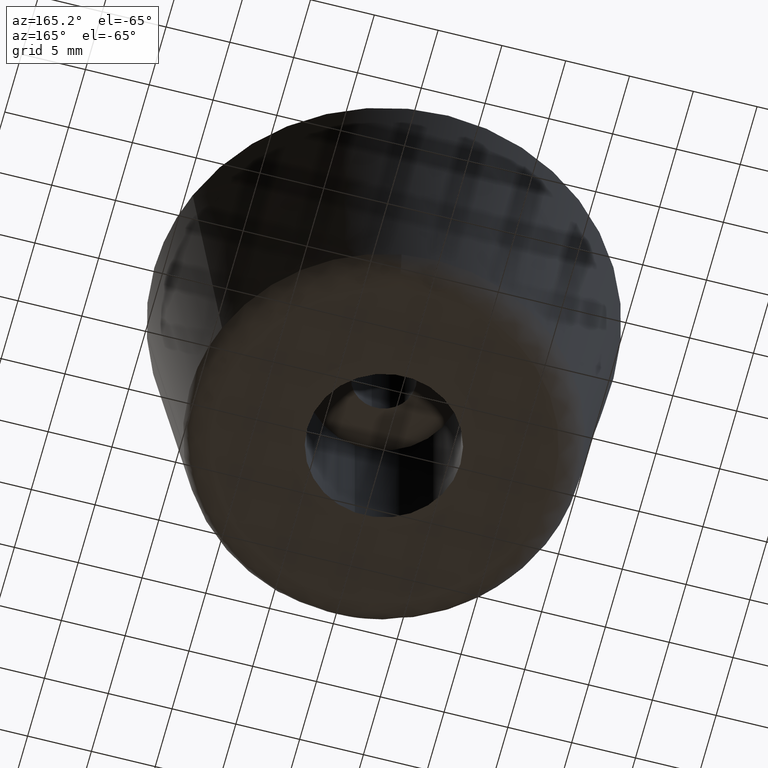
[diagram: clean part render]
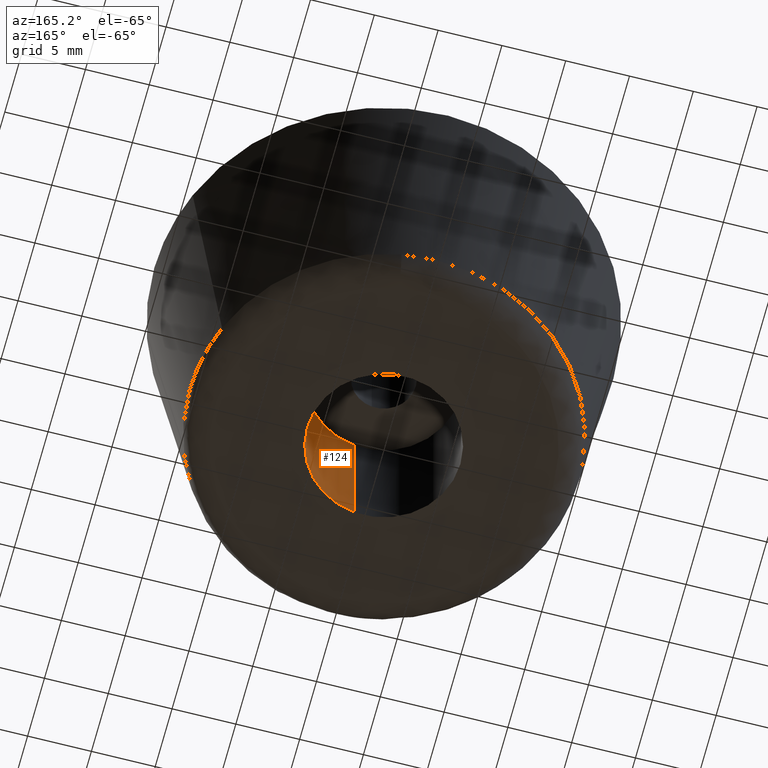
[diagram: same view with one face highlighted and labeled with its STEP entity id]
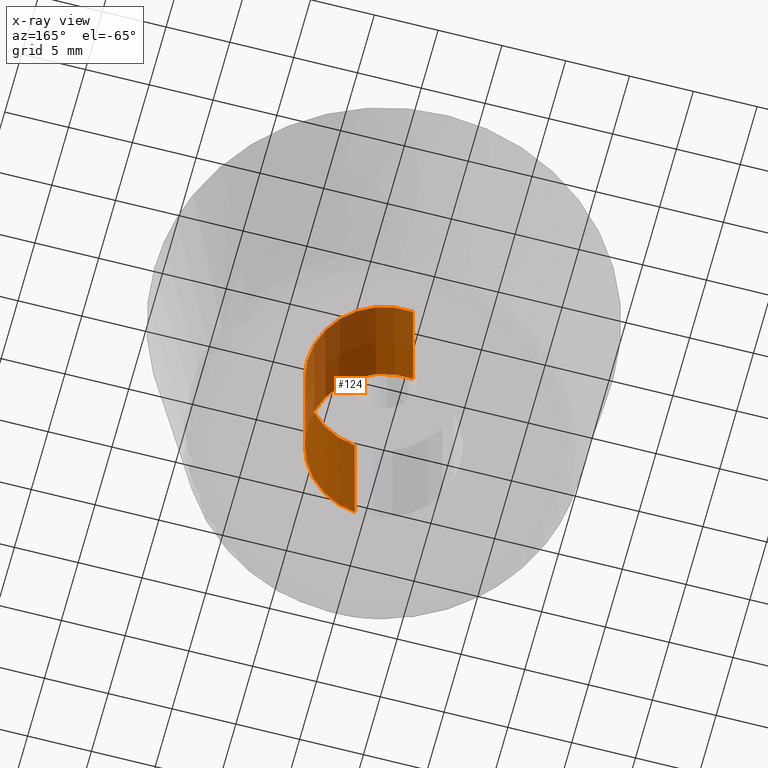
[diagram: x-ray of the same camera — body ghosted, the highlighted face saturated]
A machine part, auxiliary view. The second image highlights one B-rep face of the part: STEP entity #124.
The next image is the same camera in x-ray: the body ghosted, the highlighted face saturated — about 37% of this face is hidden behind the body in this view.
In plain terms, the highlighted cylindrical surface (partial cylindrical patch) has radius 6 mm, axis along (-0, -0, 1).
Its self-contained STEP definition (entity closure, byte-faithful):
#124=ADVANCED_FACE('',(#259),#258,.F.);
#258=CYLINDRICAL_SURFACE('',#449,6.00000000000E+000);
#259=FACE_OUTER_BOUND('',#450,.T.);
#446=CARTESIAN_POINT('',(-1.52005703014E-014,-3.59556266626E-016,1.23000000000E+001));
#447=DIRECTION('',(-2.21321743386E-015,-1.14002621638E-016,1.00000000000E+000));
#448=DIRECTION('',(1.18034234657E-001,-9.93009526364E-001,1.48029736617E-016));
#449=AXIS2_PLACEMENT_3D('',#446,#447,#448);
#450=EDGE_LOOP('',(#571,#572,#573,#574));
#571=ORIENTED_EDGE('',*,*,#646,.T.);
#572=ORIENTED_EDGE('',*,*,#670,.T.);
#573=ORIENTED_EDGE('',*,*,#658,.F.);
#574=ORIENTED_EDGE('',*,*,#671,.F.);
#646=EDGE_CURVE('',#871,#863,#872,.T.);
#658=EDGE_CURVE('',#948,#955,#956,.T.);
#670=EDGE_CURVE('',#863,#955,#1036,.T.);
#671=EDGE_CURVE('',#871,#948,#1042,.T.);
#863=VERTEX_POINT('',#1207);
#871=VERTEX_POINT('',#1213);
#872=CIRCLE('',#1217,6.00000000000E+000);
#948=VERTEX_POINT('',#1268);
#955=VERTEX_POINT('',#1273);
#956=CIRCLE('',#1277,6.00000000002E+000);
#1036=(BOUNDED_CURVE() B_SPLINE_CURVE(1,(#1330,#1331),.UNSPECIFIED.,.F.,.F.) B_SPLINE_CURVE_WITH_KNOTS((2,2),(8.33333343261E-002,9.16666667006E-001),.UNSPECIFIED.) CURVE() GEOMETRIC_REPRESENTATION_ITEM() RATIONAL_B_SPLINE_CURVE((1.00000000000E+000,1.00000000000E+000)) REPRESENTATION_ITEM('') );
#1042=(BOUNDED_CURVE() B_SPLINE_CURVE(1,(#1332,#1333),.UNSPECIFIED.,.F.,.F.) B_SPLINE_CURVE_WITH_KNOTS((2,2),(8.33333333333E-002,9.16666666667E-001),.UNSPECIFIED.) CURVE() GEOMETRIC_REPRESENTATION_ITEM() RATIONAL_B_SPLINE_CURVE((7.50000000000E-001,7.50000000000E-001)) REPRESENTATION_ITEM('') );
#1207=CARTESIAN_POINT('',(7.08203229114E-001,-5.95805741717E+000,9.65202983685E-016));
#1213=CARTESIAN_POINT('',(-7.09235167212E-001,5.95793466543E+000,4.84111497723E-016));
#1214=CARTESIAN_POINT('',(8.88178419700E-016,4.44089209850E-016,7.23951401543E-016));
#1215=DIRECTION('',(-1.34416529285E-015,-2.00265573064E-016,-1.00000000000E+000));
#1216=DIRECTION('',(-1.00000000000E+000,-2.77555756156E-016,1.34416529285E-015));
#1217=AXIS2_PLACEMENT_3D('',#1214,#1215,#1216);
#1268=CARTESIAN_POINT('',(-7.09235167215E-001,5.95793466547E+000,1.20000000000E+001));
#1273=CARTESIAN_POINT('',(7.08203229113E-001,-5.95805741717E+000,1.20000000000E+001));
#1274=CARTESIAN_POINT('',(-1.66409108715E-011,1.56541446472E-011,1.20000000000E+001));
#1275=DIRECTION('',(-1.48029736616E-015,5.23364152895E-016,-1.00000000000E+000));
#1276=DIRECTION('',(-1.00000000000E+000,-2.60902410788E-012,1.48029736616E-015));
#1277=AXIS2_PLACEMENT_3D('',#1274,#1275,#1276);
#1330=CARTESIAN_POINT('',(7.08205407941E-001,-5.95805715818E+000,1.42954732496E-008));
#1331=CARTESIAN_POINT('',(7.08205407941E-001,-5.95805715818E+000,1.20000000049E+001));
#1332=CARTESIAN_POINT('',(-7.08205407941E-001,5.95805715818E+000,6.51330841113E-015));
#1333=CARTESIAN_POINT('',(-7.08205407941E-001,5.95805715818E+000,1.20000000000E+001));